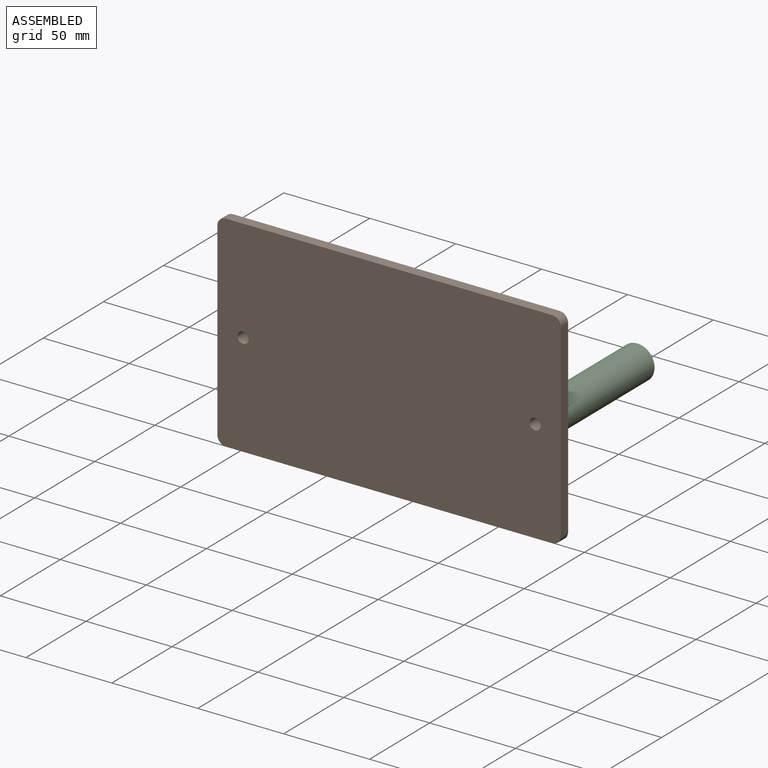
[diagram: assembled view]
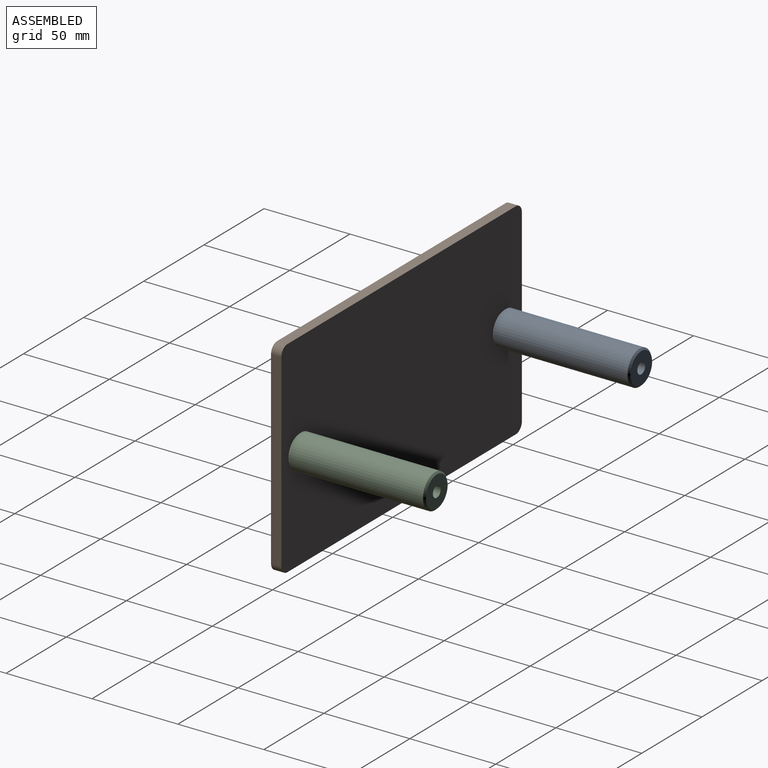
[diagram: assembled view, second angle]
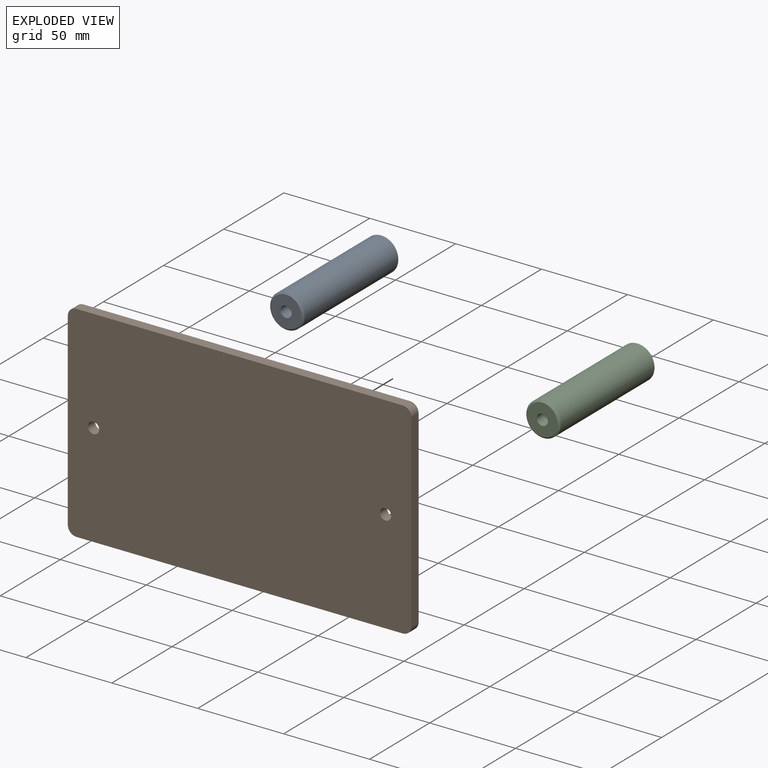
[diagram: exploded view]
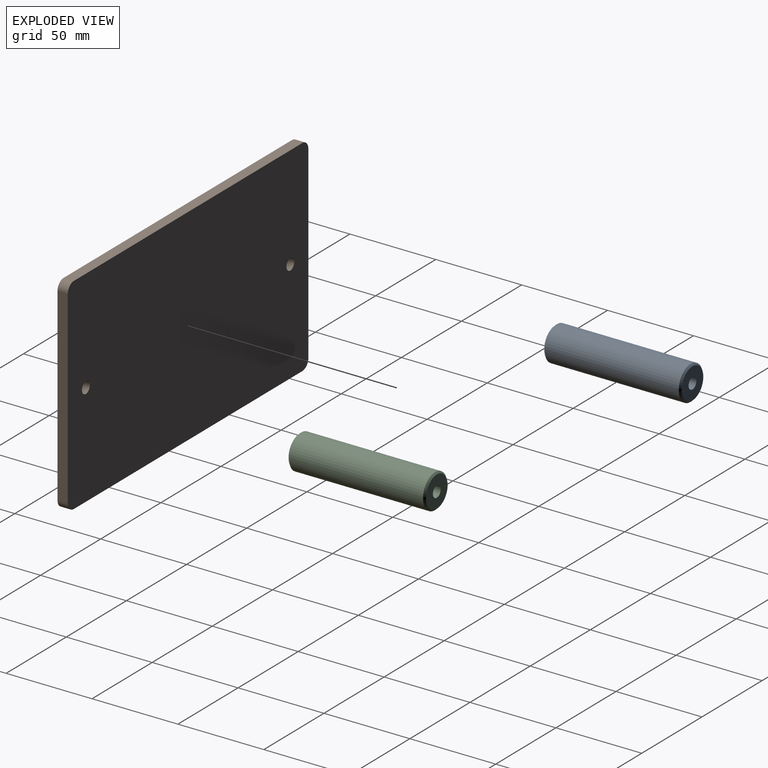
[diagram: exploded view, second angle]
ASSEMBLY  parts=3 mates=2
PART A: 6 faces, bbox 20x80x20 mm
  f0: cylinder r=3.25mm len=80mm, axis (0,1,0), area 1633.6mm2, adj f2,f3
  f1: cylinder r=10mm len=78mm, axis (0,1,0), area 4900.9mm2, adj f4,f5
  f2: plane 18x18mm, normal (0,-1,0), area 221.3mm2, adj f0,f5
  f3: plane 18x18mm, normal (0,1,0), area 221.3mm2, adj f0,f4
  f4: cone r=10mm half-angle=45deg, axis (0,-1,0), area 84.4mm2, adj f1,f3
  f5: cone r=9mm half-angle=45deg, axis (0,1,0), area 84.4mm2, adj f1,f2
PART B: 12 faces, bbox 200x6x120 mm
  f0: plane 200x120mm, normal (0,-1,0), area 23912.2mm2, adj f2,f3,f4,f5,f6,f7,f8,f9
  f1: plane 200x120mm, normal (0,1,0), area 23912.2mm2, adj f2,f3,f4,f5,f6,f7,f8,f9
  f2: plane 190x6mm, normal (0,0,1), area 1140mm2, adj f0,f1,f6,f9
  f3: plane 110x6mm, normal (-1,0,0), area 660mm2, adj f0,f1,f6,f7
  f4: plane 190x6mm, normal (0,0,-1), area 1140mm2, adj f0,f1,f7,f8
  f5: plane 110x6mm, normal (1,0,0), area 660mm2, adj f0,f1,f8,f9
  f6: cylinder r=5mm len=6mm, axis (0,-1,0), area 47.1mm2, adj f0,f1,f2,f3
  f7: cylinder r=5mm len=6mm, axis (0,1,0), area 47.1mm2, adj f0,f1,f3,f4
  f8: cylinder r=5mm len=6mm, axis (0,-1,0), area 47.1mm2, adj f0,f1,f4,f5
  f9: cylinder r=5mm len=6mm, axis (0,1,0), area 47.1mm2, adj f0,f1,f2,f5
  f10: cylinder r=3.25mm len=6.5mm, axis (0,-1,0), area 122.5mm2, adj f0,f1
  f11: cylinder r=3.25mm len=6.5mm, axis (0,-1,0), area 122.5mm2, adj f0,f1
PART C: same geometry as A
PLACE A t=(6.23,39.04,-20.44)mm
PLACE B t=(91.23,-3.96,-20.44)mm fixed
PLACE C t=(176.23,39.04,-20.44)mm
MATE fastened B.f11 <-> A.f0  axis (0,1,0) through (6.23,-0.96,-20.44)mm
MATE fastened C.f0 <-> B.f10  axis (0,-1,0) through (176.23,-0.96,-20.44)mm
